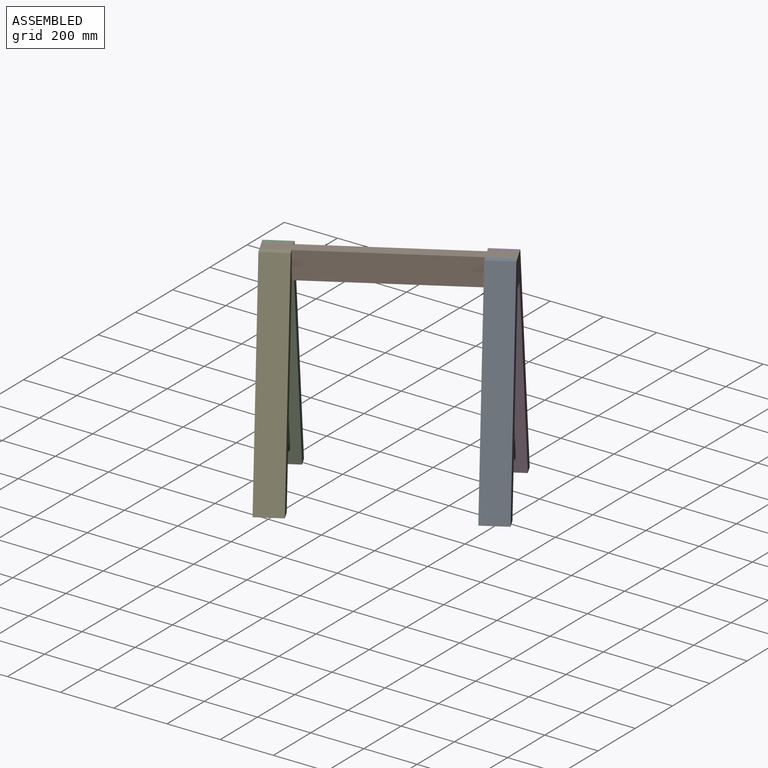
[diagram: assembled view]
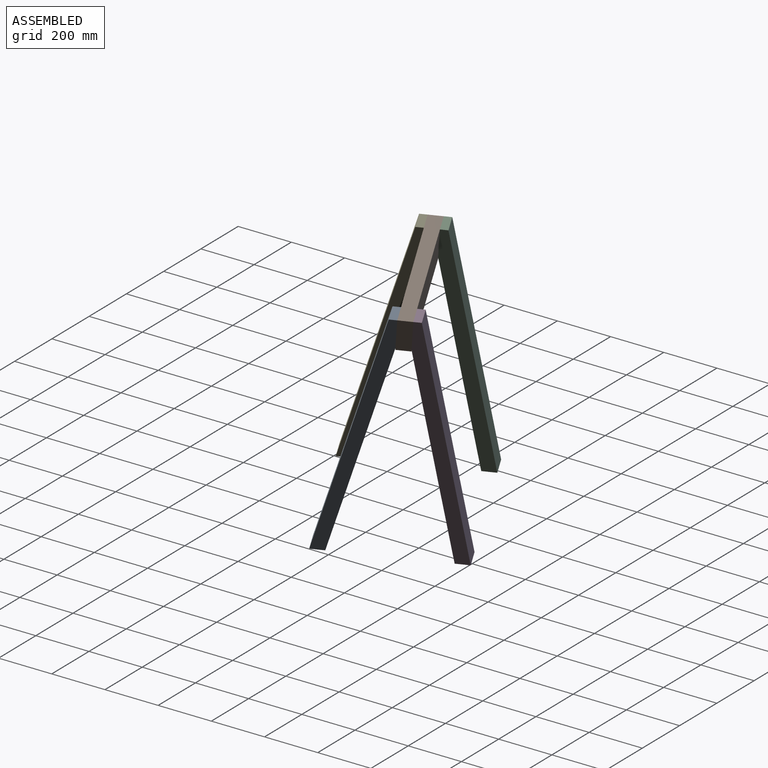
[diagram: assembled view, second angle]
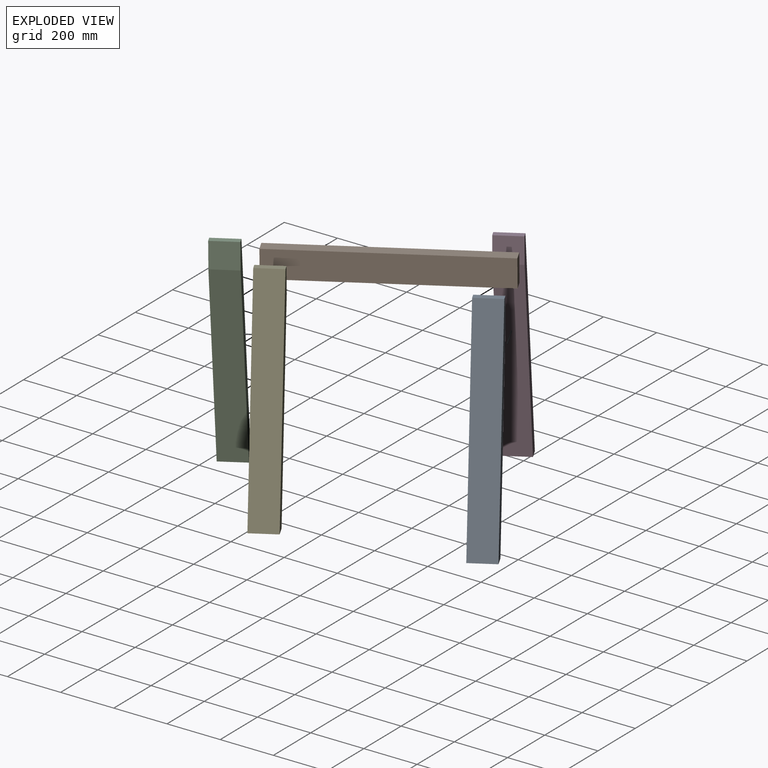
[diagram: exploded view]
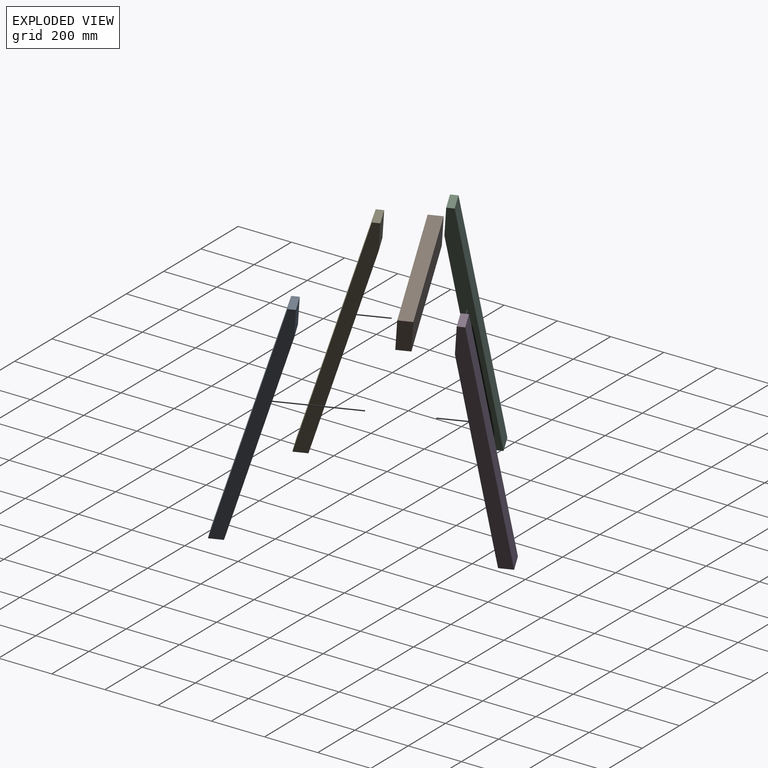
[diagram: exploded view, second angle]
ASSEMBLY  parts=5 mates=4
PART A: 7 faces, bbox 226x100x800 mm
  f0: plane 800x199.46mm, normal (-0.97,0,0.24), area 82449.1mm2, adj f1,f4,f5,f6
  f1: plane 100x50mm, normal (0,0,-1), area 5000mm2, adj f0,f2,f5,f6
  f2: plane 705.75x175.96mm, normal (0.97,0,-0.24), area 72735.2mm2, adj f1,f3,f5,f6
  f3: plane 100x94.25mm, normal (1,0,0), area 9425.3mm2, adj f2,f4,f5,f6
  f4: plane 100x26.5mm, normal (0,0,1), area 2650mm2, adj f0,f3,f5,f6
  f5: plane 800x225.96mm, normal (0,-1,0), area 38892.5mm2, adj f0,f1,f2,f3,f4
  f6: plane 800x225.96mm, normal (0,1,0), area 38892.5mm2, adj f0,f1,f2,f3,f4
PART B: 6 faces, bbox 800x50x100 mm
  f0: plane 800x50mm, normal (0,0,1), area 40000mm2, adj f1,f3,f4,f5
  f1: plane 100x50mm, normal (-1,0,0), area 5000mm2, adj f0,f2,f4,f5
  f2: plane 800x50mm, normal (0,0,-1), area 40000mm2, adj f1,f3,f4,f5
  f3: plane 100x50mm, normal (1,0,0), area 5000mm2, adj f0,f2,f4,f5
  f4: plane 800x100mm, normal (0,-1,0), area 80000mm2, adj f0,f1,f2,f3
  f5: plane 800x100mm, normal (0,1,0), area 80000mm2, adj f0,f1,f2,f3
PART C: same geometry as A
PART D: same geometry as A
PART E: same geometry as A
PLACE A rot(axis=(-0.03,0.01,1),118.3deg) t=(-666.7,6.45,-372.44)mm
PLACE B rot(axis=(0.01,-0.03,-1),151.8deg) t=(-301,205.11,-337.37)mm
PLACE C rot(axis=(-0.02,-0.06,-1),61.8deg) t=(-1218.65,-233.8,-383.55)mm
PLACE D rot(axis=(-0.02,-0.06,-1),61.8deg) t=(-602.25,97.8,-373.95)mm
PLACE E rot(axis=(-0.03,0.01,1),118.3deg) t=(-1283.09,-325.15,-382.03)mm
MATE fastened E.f3 <-> B.f5  axis (-0.47,0.88,-0.06) through (-1293.91,-312.97,-108.19)mm
MATE fastened D.f3 <-> B.f4  axis (0.47,-0.88,0.06) through (-613.07,109.98,-100.11)mm
MATE fastened C.f5 <-> B.f3  axis (-0.88,-0.47,-0.01) through (-1317.52,-268.99,-111.08)mm
MATE fastened A.f3 <-> B.f5  axis (-0.47,0.88,-0.06) through (-589.45,66,-97.22)mm
